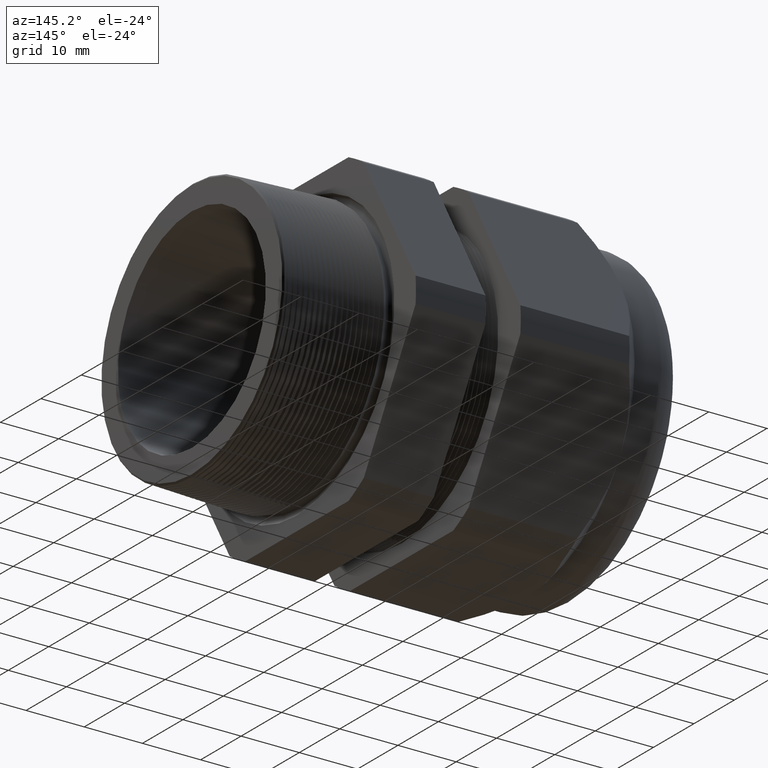
[diagram: clean part render]
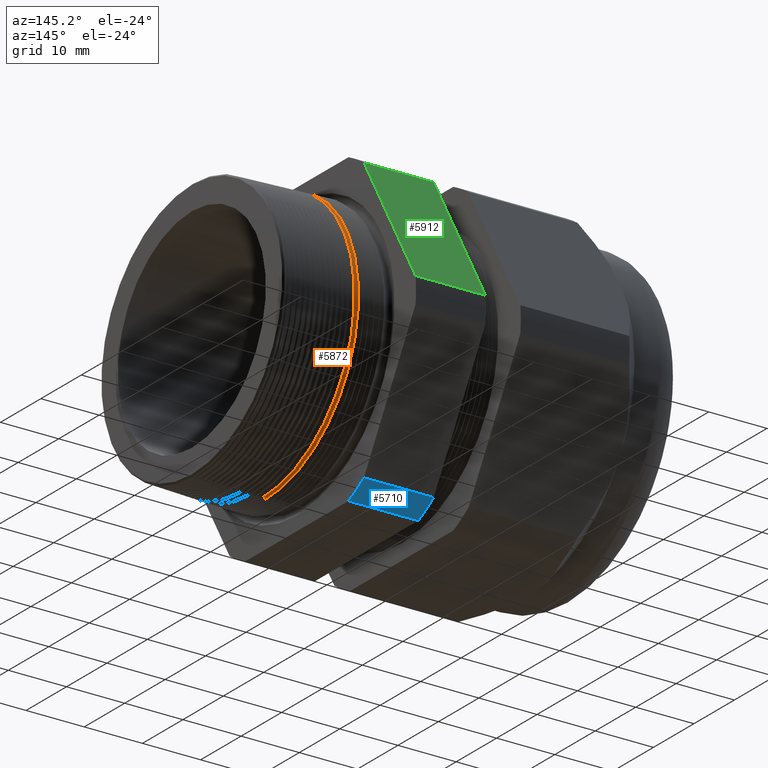
[diagram: same view with three faces highlighted in distinct colors, each labeled with its STEP entity id]
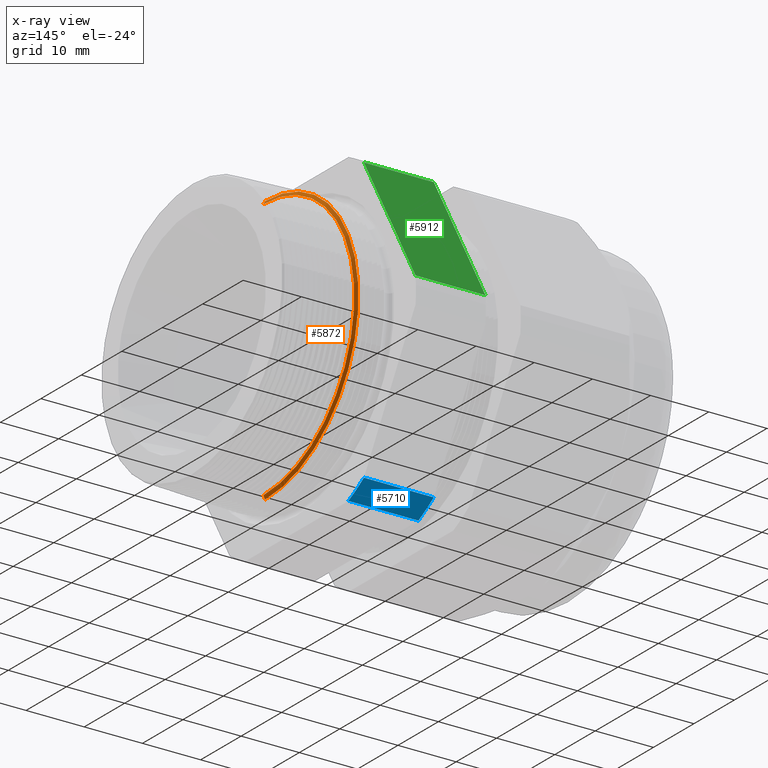
[diagram: x-ray of the same camera — body ghosted, the three highlighted faces saturated]
A machine part, auxiliary view with three faces highlighted in distinct colors.
The next image is the same camera in x-ray (body ghosted, the three faces saturated) — at least one of them is partly hidden behind the body in this view.
Their STEP definitions:

[orange] entity #5872 — the highlighted conical surface has half-angle 62 deg.
#2448 = DIRECTION ( 'NONE',  ( 0.0000000000000000000, 0.0000000000000000000, -1.000000000000000000 ) ) ;
#2449 = DIRECTION ( 'NONE',  ( 1.000000000000000000, 0.0000000000000000000, 0.0000000000000000000 ) ) ;
#2450 = CARTESIAN_POINT ( 'NONE',  ( -0.08373702801092107500, 0.0000000000000000000, 0.0000000000000000000 ) ) ;
#2451 = AXIS2_PLACEMENT_3D ( 'NONE', #2450, #2449, #2448 ) ;
#2452 = CIRCLE ( 'NONE', #2451, 0.8846618589810537600 ) ;
#2454 = CARTESIAN_POINT ( 'NONE',  ( -0.08373702801092107500, 0.0000000000000000000, 0.8846618589810537600 ) ) ;
#2547 = CARTESIAN_POINT ( 'NONE',  ( -0.08373702801092107500, 1.097551618510998100E-016, -0.8846618589810537600 ) ) ;
#3785 = CARTESIAN_POINT ( 'NONE',  ( -0.09602701323886063400, 1.111877913967415300E-016, -0.9077759594579546400 ) ) ;
#3813 = CARTESIAN_POINT ( 'NONE',  ( -0.09602701323886063400, 0.0000000000000000000, 0.9077759594579546400 ) ) ;
#3814 = DIRECTION ( 'NONE',  ( -0.4694715627859006300, 1.081298943409538900E-016, -0.8829475928589217700 ) ) ;
#3815 = VECTOR ( 'NONE', #3814, 39.37007874015748900 ) ;
#3816 = CARTESIAN_POINT ( 'NONE',  ( -0.09999999999999996400, 1.120855608092012100E-016, -0.9152480608060996600 ) ) ;
#3817 = LINE ( 'NONE', #3816, #3815 ) ;
#3836 = DIRECTION ( 'NONE',  ( 0.0000000000000000000, 0.0000000000000000000, 1.000000000000000000 ) ) ;
#3837 = DIRECTION ( 'NONE',  ( -1.000000000000000000, 0.0000000000000000000, 0.0000000000000000000 ) ) ;
#3838 = AXIS2_PLACEMENT_3D ( 'NONE', #3840, #3837, #3836 ) ;
#3839 = CONICAL_SURFACE ( 'NONE', #3838, 0.9152480608060996600, 1.082104136236473200 ) ;
#3840 = CARTESIAN_POINT ( 'NONE',  ( -0.09999999999999996400, 0.0000000000000000000, 0.0000000000000000000 ) ) ;
#3841 = FACE_OUTER_BOUND ( 'NONE', #5859, .T. ) ;
#3843 = DIRECTION ( 'NONE',  ( 1.000000000000000000, 0.0000000000000000000, 0.0000000000000000000 ) ) ;
#3844 = CARTESIAN_POINT ( 'NONE',  ( -0.09602701323886063400, 0.0000000000000000000, 0.0000000000000000000 ) ) ;
#3845 = AXIS2_PLACEMENT_3D ( 'NONE', #3844, #3843, #3908 ) ;
#3846 = CIRCLE ( 'NONE', #3845, 0.9077759594579546400 ) ;
#3900 = DIRECTION ( 'NONE',  ( -0.4694715627859006300, 0.0000000000000000000, 0.8829475928589217700 ) ) ;
#3901 = VECTOR ( 'NONE', #3900, 39.37007874015748900 ) ;
#3902 = CARTESIAN_POINT ( 'NONE',  ( -0.09999999999999996400, 0.0000000000000000000, 0.9152480608060996600 ) ) ;
#3903 = LINE ( 'NONE', #3902, #3901 ) ;
#3908 = DIRECTION ( 'NONE',  ( 0.0000000000000000000, 0.0000000000000000000, 1.000000000000000000 ) ) ;
#5169 = VERTEX_POINT ( 'NONE', #2454 ) ;
#5171 = EDGE_CURVE ( 'NONE', #5218, #5169, #2452, .T. ) ;
#5218 = VERTEX_POINT ( 'NONE', #2547 ) ;
#5858 = VERTEX_POINT ( 'NONE', #3785 ) ;
#5859 = EDGE_LOOP ( 'NONE', ( #5873, #5868, #5910, #5917 ) ) ;
#5868 = ORIENTED_EDGE ( 'NONE', *, *, #5884, .T. ) ;
#5872 = ADVANCED_FACE ( 'NONE', ( #3841 ), #3839, .T. ) ;
#5873 = ORIENTED_EDGE ( 'NONE', *, *, #5171, .F. ) ;
#5884 = EDGE_CURVE ( 'NONE', #5218, #5858, #3817, .T. ) ;
#5886 = VERTEX_POINT ( 'NONE', #3813 ) ;
#5910 = ORIENTED_EDGE ( 'NONE', *, *, #5913, .T. ) ;
#5913 = EDGE_CURVE ( 'NONE', #5858, #5886, #3846, .T. ) ;
#5917 = ORIENTED_EDGE ( 'NONE', *, *, #5919, .F. ) ;
#5919 = EDGE_CURVE ( 'NONE', #5169, #5886, #3903, .T. ) ;

[blue] entity #5710 — the highlighted cylindrical surface (partial cylindrical patch) has radius 29.4627 mm, axis along (-1, 0, 0).
#63 = EDGE_CURVE ( 'NONE', #143, #64, #291, .T. ) ;
#64 = VERTEX_POINT ( 'NONE', #282 ) ;
#143 = VERTEX_POINT ( 'NONE', #443 ) ;
#282 = CARTESIAN_POINT ( 'NONE',  ( -0.7824400000000001400, 0.5034471198646385300, -1.045000000000000200 ) ) ;
#283 = DIRECTION ( 'NONE',  ( 0.0000000000000000000, 0.0000000000000000000, 1.000000000000000000 ) ) ;
#284 = DIRECTION ( 'NONE',  ( -1.000000000000000000, 0.0000000000000000000, 0.0000000000000000000 ) ) ;
#285 = CARTESIAN_POINT ( 'NONE',  ( -0.7824400000000001400, 0.0000000000000000000, 0.0000000000000000000 ) ) ;
#286 = AXIS2_PLACEMENT_3D ( 'NONE', #285, #284, #283 ) ;
#291 = CIRCLE ( 'NONE', #286, 1.159950000000000000 ) ;
#443 = CARTESIAN_POINT ( 'NONE',  ( -0.7824400000000001400, 0.6532729870224202000, -0.9584979952648856600 ) ) ;
#1874 = DIRECTION ( 'NONE',  ( 0.0000000000000000000, 0.0000000000000000000, -1.000000000000000000 ) ) ;
#1875 = DIRECTION ( 'NONE',  ( 1.000000000000000000, 0.0000000000000000000, 0.0000000000000000000 ) ) ;
#1876 = CARTESIAN_POINT ( 'NONE',  ( -0.3100000000000000000, 0.0000000000000000000, 0.0000000000000000000 ) ) ;
#1877 = AXIS2_PLACEMENT_3D ( 'NONE', #1876, #1875, #1874 ) ;
#1878 = CIRCLE ( 'NONE', #1877, 1.159950000000000000 ) ;
#1945 = CARTESIAN_POINT ( 'NONE',  ( -0.3100000000000000000, 0.5034471198646385300, -1.045000000000000200 ) ) ;
#3301 = CARTESIAN_POINT ( 'NONE',  ( -0.3100000000000000000, 0.6532729870224199800, -0.9584979952648857700 ) ) ;
#3492 = DIRECTION ( 'NONE',  ( 0.0000000000000000000, 0.0000000000000000000, 1.000000000000000000 ) ) ;
#3493 = DIRECTION ( 'NONE',  ( -1.000000000000000000, 0.0000000000000000000, 0.0000000000000000000 ) ) ;
#3494 = CARTESIAN_POINT ( 'NONE',  ( 0.4000000000000000800, 0.0000000000000000000, 0.0000000000000000000 ) ) ;
#3495 = AXIS2_PLACEMENT_3D ( 'NONE', #3494, #3493, #3492 ) ;
#3496 = CYLINDRICAL_SURFACE ( 'NONE', #3495, 1.159950000000000000 ) ;
#3501 = FACE_OUTER_BOUND ( 'NONE', #5708, .T. ) ;
#3505 = DIRECTION ( 'NONE',  ( -1.000000000000000000, 0.0000000000000000000, 0.0000000000000000000 ) ) ;
#3506 = VECTOR ( 'NONE', #3505, 39.37007874015748100 ) ;
#3507 = CARTESIAN_POINT ( 'NONE',  ( 0.4000000000000000800, 0.6532729870224199800, -0.9584979952648857700 ) ) ;
#3512 = LINE ( 'NONE', #3507, #3506 ) ;
#3530 = DIRECTION ( 'NONE',  ( -1.000000000000000000, 0.0000000000000000000, 0.0000000000000000000 ) ) ;
#3531 = VECTOR ( 'NONE', #3530, 39.37007874015748100 ) ;
#3532 = CARTESIAN_POINT ( 'NONE',  ( 0.4000000000000000800, 0.5034471198646385300, -1.045000000000000200 ) ) ;
#3533 = LINE ( 'NONE', #3532, #3531 ) ;
#4808 = EDGE_CURVE ( 'NONE', #4833, #5562, #1878, .T. ) ;
#4833 = VERTEX_POINT ( 'NONE', #1945 ) ;
#5562 = VERTEX_POINT ( 'NONE', #3301 ) ;
#5701 = EDGE_CURVE ( 'NONE', #5562, #143, #3512, .T. ) ;
#5702 = ORIENTED_EDGE ( 'NONE', *, *, #5701, .F. ) ;
#5703 = ORIENTED_EDGE ( 'NONE', *, *, #4808, .F. ) ;
#5704 = ORIENTED_EDGE ( 'NONE', *, *, #63, .F. ) ;
#5706 = ORIENTED_EDGE ( 'NONE', *, *, #5728, .T. ) ;
#5708 = EDGE_LOOP ( 'NONE', ( #5706, #5704, #5702, #5703 ) ) ;
#5710 = ADVANCED_FACE ( 'NONE', ( #3501 ), #3496, .T. ) ;
#5728 = EDGE_CURVE ( 'NONE', #4833, #64, #3533, .T. ) ;

[green] entity #5912 — the highlighted planar face has unit normal (0, 0.866, 0.5).
#81 = EDGE_CURVE ( 'NONE', #82, #137, #319, .T. ) ;
#82 = VERTEX_POINT ( 'NONE', #315 ) ;
#137 = VERTEX_POINT ( 'NONE', #454 ) ;
#315 = CARTESIAN_POINT ( 'NONE',  ( -0.7824400000000001400, 0.6532729870224199800, 0.9584979952648858800 ) ) ;
#316 = DIRECTION ( 'NONE',  ( 0.0000000000000000000, 0.4999999999999998300, -0.8660254037844386000 ) ) ;
#317 = VECTOR ( 'NONE', #316, 39.37007874015748900 ) ;
#318 = CARTESIAN_POINT ( 'NONE',  ( -0.7824400000000001400, 1.427496546954738900, -0.3824965469547381100 ) ) ;
#319 = LINE ( 'NONE', #318, #317 ) ;
#454 = CARTESIAN_POINT ( 'NONE',  ( -0.7824400000000001400, 1.156720106887057600, 0.08650200473511453200 ) ) ;
#1848 = CARTESIAN_POINT ( 'NONE',  ( -0.3100000000000000000, 0.6532729870224199800, 0.9584979952648858800 ) ) ;
#1879 = DIRECTION ( 'NONE',  ( 0.0000000000000000000, -0.4999999999999998300, 0.8660254037844386000 ) ) ;
#1880 = VECTOR ( 'NONE', #1879, 39.37007874015748900 ) ;
#1881 = CARTESIAN_POINT ( 'NONE',  ( -0.3100000000000000000, 1.427496546954738300, -0.3824965469547381100 ) ) ;
#1882 = LINE ( 'NONE', #1881, #1880 ) ;
#3167 = CARTESIAN_POINT ( 'NONE',  ( -0.3100000000000000000, 1.156720106887057600, 0.08650200473511453200 ) ) ;
#3847 = DIRECTION ( 'NONE',  ( 0.0000000000000000000, -0.4999999999999998300, 0.8660254037844386000 ) ) ;
#3848 = DIRECTION ( 'NONE',  ( 0.0000000000000000000, 0.8660254037844387100, 0.4999999999999998900 ) ) ;
#3849 = CARTESIAN_POINT ( 'NONE',  ( 0.4000000000000000800, 0.6532729870224199800, 0.9584979952648858800 ) ) ;
#3850 = AXIS2_PLACEMENT_3D ( 'NONE', #3849, #3848, #3847 ) ;
#3851 = PLANE ( 'NONE',  #3850 ) ;
#3852 = FACE_OUTER_BOUND ( 'NONE', #5908, .T. ) ;
#3853 = DIRECTION ( 'NONE',  ( -1.000000000000000000, 0.0000000000000000000, 0.0000000000000000000 ) ) ;
#3854 = VECTOR ( 'NONE', #3853, 39.37007874015748100 ) ;
#3855 = CARTESIAN_POINT ( 'NONE',  ( 0.4000000000000000800, 0.6532729870224199800, 0.9584979952648858800 ) ) ;
#3856 = LINE ( 'NONE', #3855, #3854 ) ;
#3904 = DIRECTION ( 'NONE',  ( -1.000000000000000000, 0.0000000000000000000, 0.0000000000000000000 ) ) ;
#3905 = VECTOR ( 'NONE', #3904, 39.37007874015748100 ) ;
#3906 = CARTESIAN_POINT ( 'NONE',  ( 0.4000000000000000800, 1.156720106887057600, 0.08650200473511453200 ) ) ;
#3907 = LINE ( 'NONE', #3906, #3905 ) ;
#4782 = VERTEX_POINT ( 'NONE', #1848 ) ;
#4805 = EDGE_CURVE ( 'NONE', #5511, #4782, #1882, .T. ) ;
#5511 = VERTEX_POINT ( 'NONE', #3167 ) ;
#5899 = ORIENTED_EDGE ( 'NONE', *, *, #4805, .F. ) ;
#5905 = EDGE_CURVE ( 'NONE', #4782, #82, #3856, .T. ) ;
#5907 = ORIENTED_EDGE ( 'NONE', *, *, #81, .F. ) ;
#5908 = EDGE_LOOP ( 'NONE', ( #5909, #5907, #5911, #5899 ) ) ;
#5909 = ORIENTED_EDGE ( 'NONE', *, *, #5914, .T. ) ;
#5911 = ORIENTED_EDGE ( 'NONE', *, *, #5905, .F. ) ;
#5912 = ADVANCED_FACE ( 'NONE', ( #3852 ), #3851, .T. ) ;
#5914 = EDGE_CURVE ( 'NONE', #5511, #137, #3907, .T. ) ;